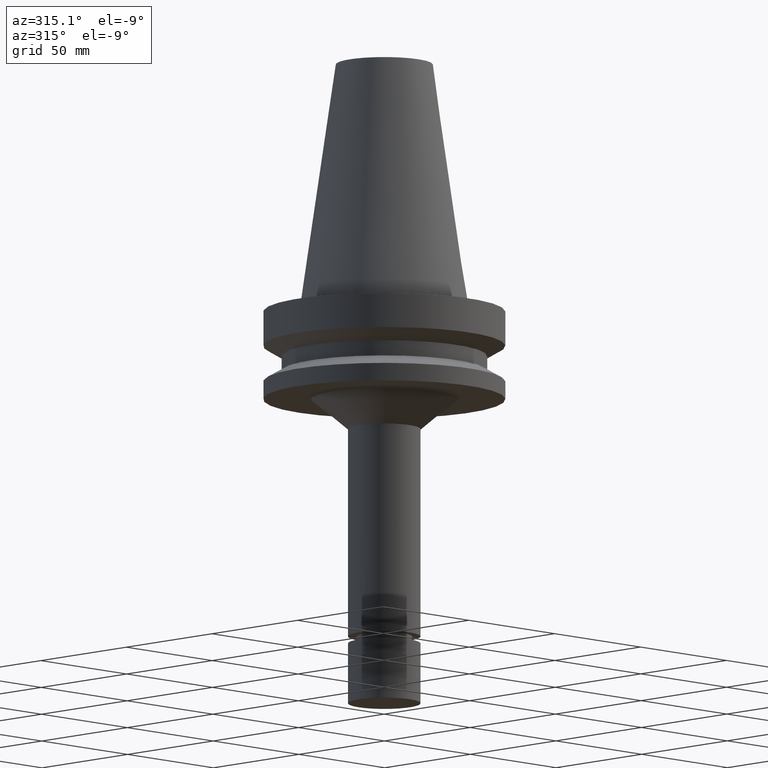
[diagram: clean part render]
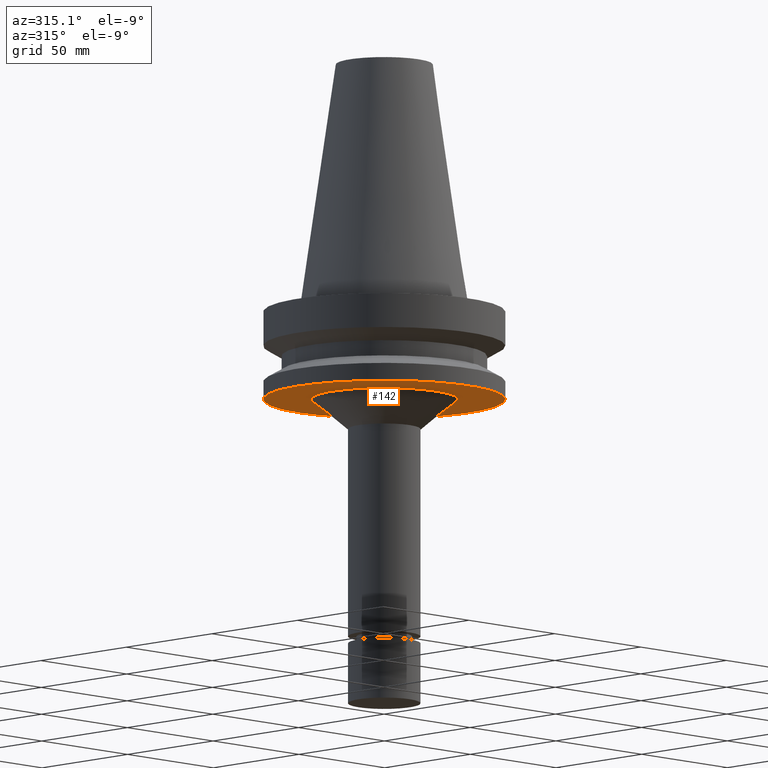
[diagram: same view with one face highlighted and labeled with its STEP entity id]
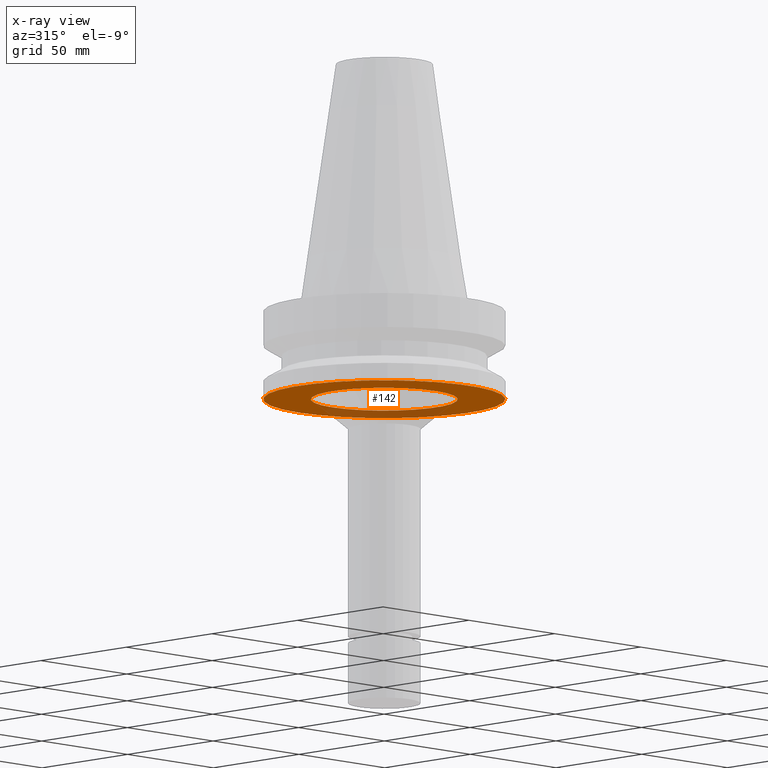
[diagram: x-ray of the same camera — body ghosted, the highlighted face saturated]
A machine part, auxiliary view. The second image highlights one B-rep face of the part: STEP entity #142.
The next image is the same camera in x-ray: the body ghosted, the highlighted face saturated — about 20% of this face is hidden behind the body in this view.
In plain terms, the highlighted planar face has unit normal (0, 0, -1).
Its self-contained STEP definition (entity closure, byte-faithful):
#130=EDGE_CURVE('Unnamed[1]',#287,#287,#288,.T.);
#137=EDGE_CURVE('Unnamed[1]',#297,#297,#298,.T.);
#142=ADVANCED_FACE('Unnamed[1]',(#304,#305),#306,.T.);
#287=VERTEX_POINT('',#484);
#288=CIRCLE('',#485,50.0);
#297=VERTEX_POINT('',#497);
#298=CIRCLE('',#498,30.3637797684197);
#304=FACE_OUTER_BOUND('',#506,.T.);
#305=FACE_BOUND('',#507,.T.);
#306=PLANE('',#508);
#484=CARTESIAN_POINT('',(2.32682891837996E-015,50.0,-37.9999999999998));
#485=AXIS2_PLACEMENT_3D('',#679,#680,#681);
#497=CARTESIAN_POINT('',(2.32682891837996E-015,30.3637797684197,-37.9999999999998));
#498=AXIS2_PLACEMENT_3D('',#690,#691,#692);
#506=EDGE_LOOP('',(#697));
#507=EDGE_LOOP('',(#698));
#508=AXIS2_PLACEMENT_3D('',#699,#700,#701);
#679=CARTESIAN_POINT('',(2.32682891837996E-015,1.68441340272361E-014,-37.9999999999998));
#680=DIRECTION('',(-6.12323399573677E-017,-2.72265846766671E-017,1.0));
#681=DIRECTION('',(-6.49430021956856E-033,1.0,2.72265846766671E-017));
#690=CARTESIAN_POINT('',(2.32682891837996E-015,1.68441340272361E-014,-37.9999999999999));
#691=DIRECTION('',(-6.12323399573677E-017,-2.72265846766908E-017,1.0));
#692=DIRECTION('',(-6.49430021956872E-033,1.0,2.72265846766908E-017));
#697=ORIENTED_EDGE('',*,*,#130,.F.);
#698=ORIENTED_EDGE('',*,*,#137,.T.);
#699=CARTESIAN_POINT('',(2.32682891837996E-015,40.1818898842098,-37.9999999999998));
#700=DIRECTION('',(6.12323399573677E-017,3.74099577897705E-015,-1.0));
#701=DIRECTION('',(2.33897078048169E-031,-1.0,-3.74099577897705E-015));